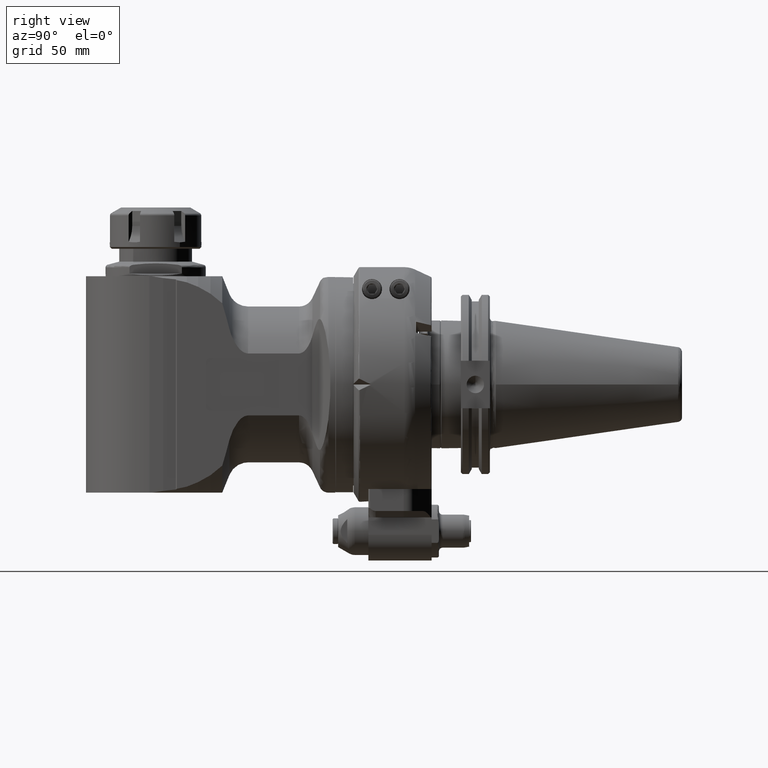
[diagram: clean part render]
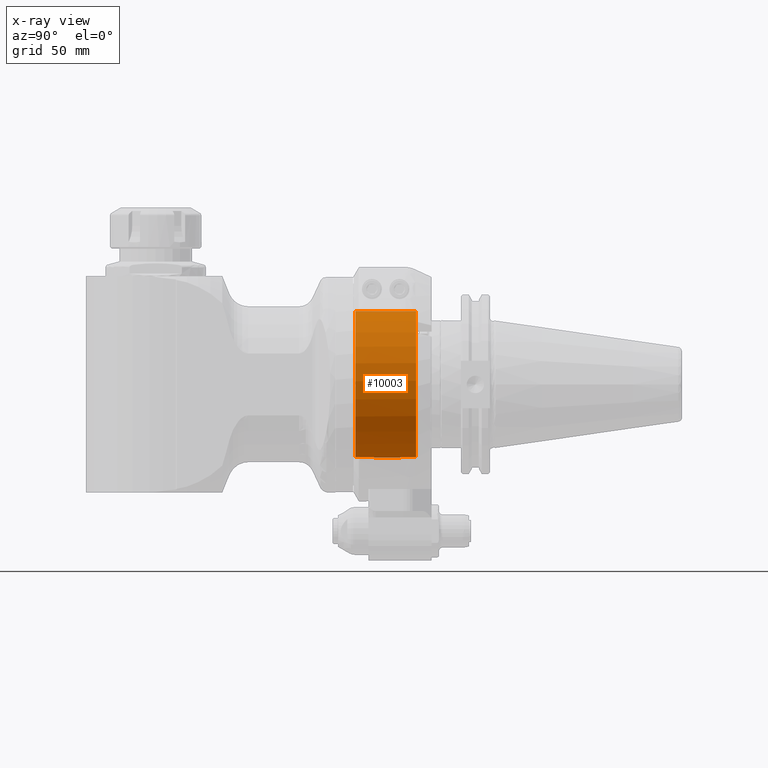
[diagram: x-ray — body ghosted, one internal face saturated and labeled with its STEP entity id]
A machine part, right view, then the same camera in x-ray: the body is ghosted and one INTERNAL B-rep face — a face not visible from any outside direction — is saturated and labeled: STEP entity #10003.
In plain terms, the highlighted cylindrical surface (partial cylindrical patch) has radius 40 mm, axis along (0, -1, 0).
Its self-contained STEP definition (entity closure, byte-faithful):
#809=CYLINDRICAL_SURFACE('',#11055,40.);
#1176=FACE_OUTER_BOUND('',#1813,.T.);
#1813=EDGE_LOOP('',(#7966,#7967,#7968,#7969,#7970,#7971,#7972,#7973));
#2456=LINE('',#18512,#3090);
#2457=LINE('',#18515,#3091);
#2458=LINE('',#18519,#3092);
#2459=LINE('',#18523,#3093);
#3090=VECTOR('',#13196,8.499999538462);
#3091=VECTOR('',#13199,8.499999538462);
#3092=VECTOR('',#13202,32.99999976923);
#3093=VECTOR('',#13205,32.99999976923);
#3706=CIRCLE('',#11006,40.);
#3728=CIRCLE('',#11056,40.);
#3729=CIRCLE('',#11057,40.);
#3730=CIRCLE('',#11058,40.);
#4472=VERTEX_POINT('',#17620);
#4473=VERTEX_POINT('',#17622);
#4511=VERTEX_POINT('',#18510);
#4512=VERTEX_POINT('',#18514);
#4513=VERTEX_POINT('',#18516);
#4514=VERTEX_POINT('',#18518);
#4515=VERTEX_POINT('',#18520);
#4516=VERTEX_POINT('',#18522);
#5677=EDGE_CURVE('',#4473,#4472,#3706,.T.);
#5747=EDGE_CURVE('',#4472,#4511,#2456,.T.);
#5748=EDGE_CURVE('',#4473,#4512,#2457,.T.);
#5749=EDGE_CURVE('',#4513,#4511,#3728,.T.);
#5750=EDGE_CURVE('',#4513,#4514,#2458,.T.);
#5751=EDGE_CURVE('',#4515,#4514,#3729,.T.);
#5752=EDGE_CURVE('',#4515,#4516,#2459,.T.);
#5753=EDGE_CURVE('',#4512,#4516,#3730,.T.);
#7966=ORIENTED_EDGE('',*,*,#5748,.F.);
#7967=ORIENTED_EDGE('',*,*,#5677,.T.);
#7968=ORIENTED_EDGE('',*,*,#5747,.T.);
#7969=ORIENTED_EDGE('',*,*,#5749,.F.);
#7970=ORIENTED_EDGE('',*,*,#5750,.T.);
#7971=ORIENTED_EDGE('',*,*,#5751,.F.);
#7972=ORIENTED_EDGE('',*,*,#5752,.T.);
#7973=ORIENTED_EDGE('',*,*,#5753,.F.);
#10003=ADVANCED_FACE('',(#1176),#809,.F.);
#11006=AXIS2_PLACEMENT_3D('',#17623,#13065,#13066);
#11055=AXIS2_PLACEMENT_3D('',#18513,#13197,#13198);
#11056=AXIS2_PLACEMENT_3D('',#18517,#13200,#13201);
#11057=AXIS2_PLACEMENT_3D('',#18521,#13203,#13204);
#11058=AXIS2_PLACEMENT_3D('',#18524,#13206,#13207);
#13065=DIRECTION('center_axis',(0.,1.,0.));
#13066=DIRECTION('ref_axis',(0.134146341463404,0.,-0.990961532589426));
#13196=DIRECTION('',(0.,1.,0.));
#13197=DIRECTION('center_axis',(0.,-1.,0.));
#13198=DIRECTION('ref_axis',(1.22464679914735E-16,0.,-1.));
#13199=DIRECTION('',(0.,1.,0.));
#13200=DIRECTION('center_axis',(0.,-1.,0.));
#13201=DIRECTION('ref_axis',(-0.0374999961538496,0.,0.999296627777989));
#13202=DIRECTION('',(0.,-1.,0.));
#13203=DIRECTION('center_axis',(0.,1.,0.));
#13204=DIRECTION('ref_axis',(0.,0.,-1.));
#13205=DIRECTION('',(0.,1.,0.));
#13206=DIRECTION('center_axis',(0.,-1.,0.));
#13207=DIRECTION('ref_axis',(0.134146341463404,0.,-0.990961532589426));
#17620=CARTESIAN_POINT('',(-5.365853658537,25.50000023077,-39.63846130358));
#17622=CARTESIAN_POINT('',(5.365853658536,25.50000023077,-39.63846130358));
#17623=CARTESIAN_POINT('Origin',(0.,25.50000023077,0.));
#18510=CARTESIAN_POINT('',(-5.365853658537,33.99999976923,-39.63846130358));
#18512=CARTESIAN_POINT('',(-5.365853658537,25.50000023077,-39.63846130358));
#18513=CARTESIAN_POINT('Origin',(0.,21.07692284615,0.));
#18514=CARTESIAN_POINT('',(5.365853658537,33.99999976923,-39.63846130358));
#18515=CARTESIAN_POINT('',(5.365853658537,25.50000023077,-39.63846130358));
#18516=CARTESIAN_POINT('',(-1.499999846154,33.99999976923,39.97186511112));
#18517=CARTESIAN_POINT('Origin',(0.,33.99999976923,0.));
#18518=CARTESIAN_POINT('',(-1.499999846154,1.,39.97186511112));
#18519=CARTESIAN_POINT('',(-1.499999846154,33.99999976923,39.97186511112));
#18520=CARTESIAN_POINT('',(1.499999846154,1.,39.97186511112));
#18521=CARTESIAN_POINT('Origin',(0.,1.,0.));
#18522=CARTESIAN_POINT('',(1.499999846154,33.99999976923,39.97186511112));
#18523=CARTESIAN_POINT('',(1.499999846154,1.,39.97186511112));
#18524=CARTESIAN_POINT('Origin',(0.,33.99999976923,0.));